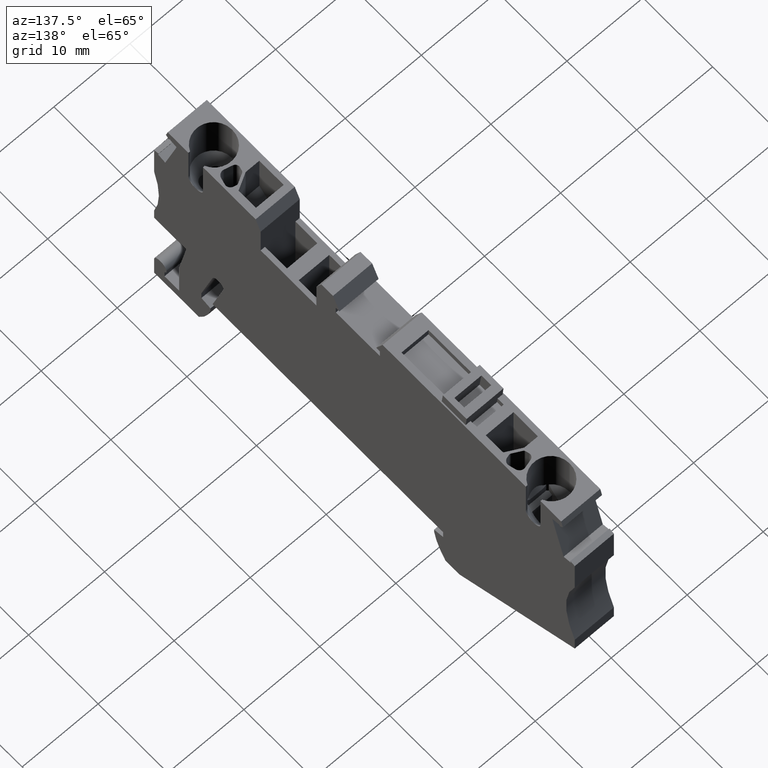
[diagram: clean part render]
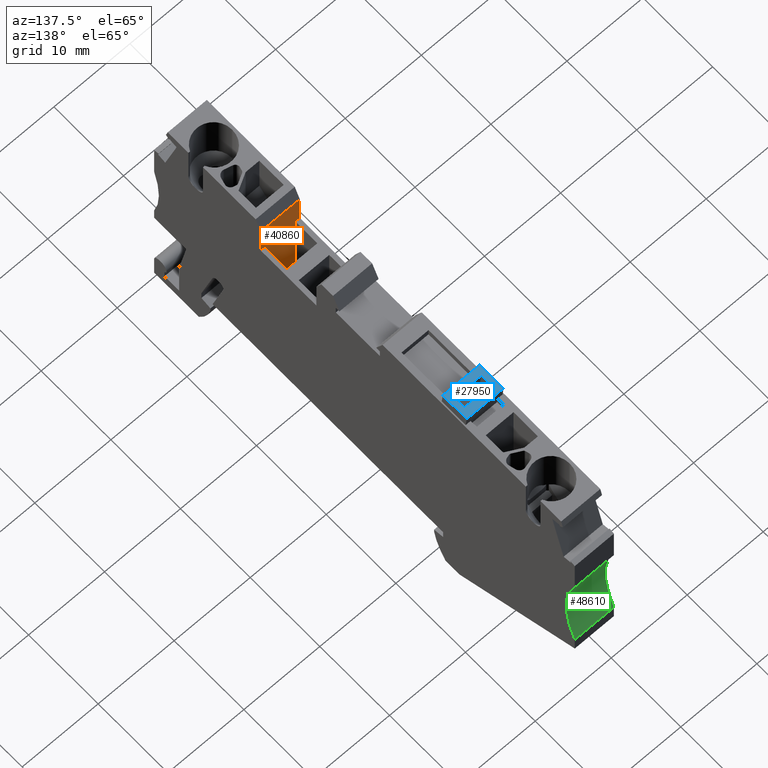
[diagram: same view with three faces highlighted in distinct colors, each labeled with its STEP entity id]
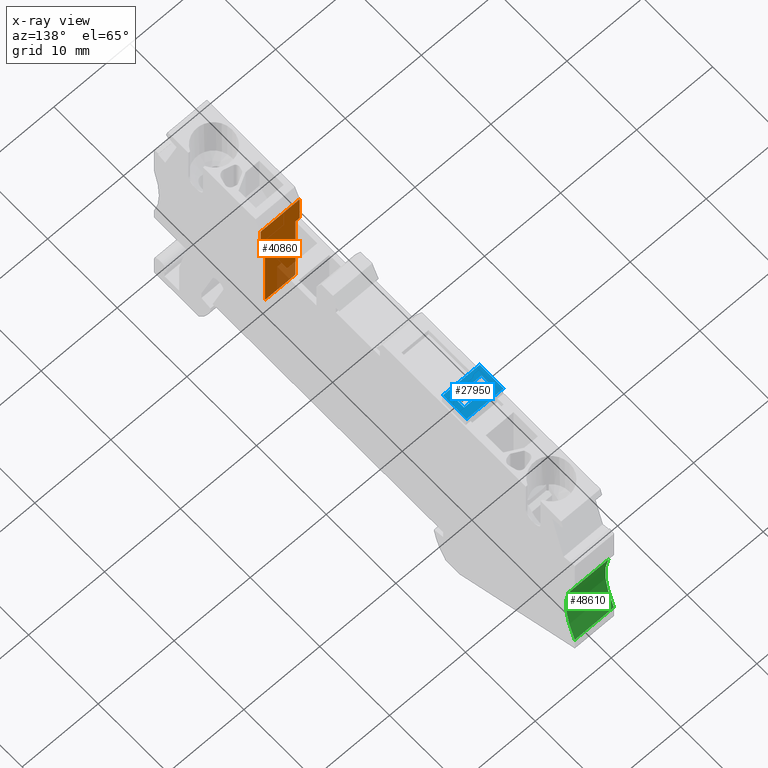
[diagram: x-ray of the same camera — body ghosted, the three highlighted faces saturated]
A machine part, auxiliary view with three faces highlighted in distinct colors.
The next image is the same camera in x-ray (body ghosted, the three faces saturated) — at least one of them is partly hidden behind the body in this view.
Their STEP definitions:

[orange] entity #40860 — the highlighted planar face has unit normal (-0, -1, -0).
#19890=CARTESIAN_POINT('',(-7.06783277832441,-10.850000000003,
53.6700000000099));
#19900=VERTEX_POINT('',#19890);
#19930=CARTESIAN_POINT('',(-7.06783277832433,-41.5717607425285,
53.6699999999942));
#19940=DIRECTION('',(-2.76167977375508E-15,1.,0.));
#19950=VECTOR('',#19940,1.);
#19960=LINE('',#19930,#19950);
#19970=CARTESIAN_POINT('',(-7.06783277832441,-15.1500000000016,
53.6700000000075));
#19980=VERTEX_POINT('',#19970);
#19990=EDGE_CURVE('',#19980,#19900,#19960,.T.);
#38420=CARTESIAN_POINT('',(-7.0678327783244,-15.1500000000016,49.095));
#38430=VERTEX_POINT('',#38420);
#38580=CARTESIAN_POINT('',(-7.06783277832441,-27.35,49.095));
#38590=VERTEX_POINT('',#38580);
#38620=CARTESIAN_POINT('',(-7.06783277832441,-41.5717607425285,49.095));
#38630=DIRECTION('',(0.,-1.,0.));
#38640=VECTOR('',#38630,1.);
#38650=LINE('',#38620,#38640);
#38660=EDGE_CURVE('',#38430,#38590,#38650,.T.);
#40370=CARTESIAN_POINT('',(-7.06783277832441,-15.1500000000016,49.095));
#40380=DIRECTION('',(-1.,-0.,-1.11022302462515E-16));
#40390=DIRECTION('',(1.11022302462515E-16,0.,-1.));
#40400=AXIS2_PLACEMENT_3D('',#40370,#40380,#40390);
#40410=PLANE('',#40400);
#40420=CARTESIAN_POINT('',(-7.06783277832442,-15.1500000000016,53.67));
#40430=DIRECTION('',(0.,0.,-1.));
#40440=VECTOR('',#40430,1.);
#40450=LINE('',#40420,#40440);
#40460=CARTESIAN_POINT('',(-7.06783277832441,-15.1500000000016,53.095));
#40470=VERTEX_POINT('',#40460);
#40480=EDGE_CURVE('',#19980,#40470,#40450,.T.);
#40490=ORIENTED_EDGE('',*,*,#40480,.T.);
#40500=ORIENTED_EDGE('',*,*,#19990,.F.);
#40510=CARTESIAN_POINT('',(-7.06783277832442,-10.8500000000034,53.67));
#40520=DIRECTION('',(0.,0.,1.));
#40530=VECTOR('',#40520,1.);
#40540=LINE('',#40510,#40530);
#40550=CARTESIAN_POINT('',(-7.06783277832441,-10.8500000000033,
48.5199999999973));
#40560=VERTEX_POINT('',#40550);
#40570=EDGE_CURVE('',#40560,#19900,#40540,.T.);
#40580=ORIENTED_EDGE('',*,*,#40570,.T.);
#40590=CARTESIAN_POINT('',(-7.06783277832433,-41.5717607425285,
48.5199999999973));
#40600=DIRECTION('',(2.76167977375508E-15,-1.,0.));
#40610=VECTOR('',#40600,1.);
#40620=LINE('',#40590,#40610);
#40630=CARTESIAN_POINT('',(-7.0678327783244,-15.1500000000016,
48.5199999999973));
#40640=VERTEX_POINT('',#40630);
#40650=EDGE_CURVE('',#40560,#40640,#40620,.T.);
#40660=ORIENTED_EDGE('',*,*,#40650,.F.);
#40670=EDGE_CURVE('',#38430,#40640,#40450,.T.);
#40680=ORIENTED_EDGE('',*,*,#40670,.T.);
#40690=ORIENTED_EDGE('',*,*,#38660,.F.);
#40700=CARTESIAN_POINT('',(-7.06783277832441,-27.3499999999999,53.67));
#40710=DIRECTION('',(1.11022302462515E-16,-4.62223186652937E-33,-1.));
#40720=VECTOR('',#40710,1.);
#40730=LINE('',#40700,#40720);
#40740=CARTESIAN_POINT('',(-7.06783277832441,-27.35,53.095));
#40750=VERTEX_POINT('',#40740);
#40760=EDGE_CURVE('',#40750,#38590,#40730,.T.);
#40770=ORIENTED_EDGE('',*,*,#40760,.T.);
#40780=CARTESIAN_POINT('',(-7.06783277832441,-41.5717607425285,53.095));
#40790=DIRECTION('',(0.,-1.,0.));
#40800=VECTOR('',#40790,1.);
#40810=LINE('',#40780,#40800);
#40820=EDGE_CURVE('',#40470,#40750,#40810,.T.);
#40830=ORIENTED_EDGE('',*,*,#40820,.T.);
#40840=EDGE_LOOP('',(#40830,#40770,#40690,#40680,#40660,#40580,#40500,
#40490));
#40850=FACE_OUTER_BOUND('',#40840,.T.);
#40860=ADVANCED_FACE('',(#40850),#40410,.F.);

[blue] entity #27950 — the highlighted planar face has unit normal (-0, -0, 1).
#2160=CARTESIAN_POINT('',(22.3444107016603,-7.55000000000213,
53.5200000001338));
#2170=VERTEX_POINT('',#2160);
#2320=CARTESIAN_POINT('',(18.9233073521703,-7.55000000000213,
53.5200000001338));
#2330=VERTEX_POINT('',#2320);
#2360=CARTESIAN_POINT('',(-30.4994006644853,-7.55000000000213,
53.5200000001338));
#2370=DIRECTION('',(-1.,0.,0.));
#2380=VECTOR('',#2370,1.);
#2390=LINE('',#2360,#2380);
#2400=EDGE_CURVE('',#2170,#2330,#2390,.T.);
#5700=CARTESIAN_POINT('',(18.9233073521703,-7.55000000000214,
48.6700000001338));
#5710=VERTEX_POINT('',#5700);
#5740=CARTESIAN_POINT('',(18.9233073521703,-7.55000000000213,
53.6700000001002));
#5750=DIRECTION('',(0.,0.,1.));
#5760=VECTOR('',#5750,1.);
#5770=LINE('',#5740,#5760);
#5780=EDGE_CURVE('',#5710,#2330,#5770,.T.);
#5980=CARTESIAN_POINT('',(21.2873305705088,-7.55000000000213,
52.7950000001338));
#5990=DIRECTION('',(0.,0.,1.));
#6000=VECTOR('',#5990,1.);
#6010=LINE('',#5980,#6000);
#6020=CARTESIAN_POINT('',(21.2873305705088,-7.55000000000214,
49.3200000001059));
#6030=VERTEX_POINT('',#6020);
#6040=CARTESIAN_POINT('',(21.2873305705088,-7.55000000000213,
52.8700000001059));
#6050=VERTEX_POINT('',#6040);
#6060=EDGE_CURVE('',#6030,#6050,#6010,.T.);
#6450=CARTESIAN_POINT('',(-30.4994006644853,-7.55000000000213,
48.6700000001338));
#6460=DIRECTION('',(-1.,0.,0.));
#6470=VECTOR('',#6460,1.);
#6480=LINE('',#6450,#6470);
#6490=CARTESIAN_POINT('',(22.3444107016606,-7.55000000000213,
48.6700000001338));
#6500=VERTEX_POINT('',#6490);
#6510=EDGE_CURVE('',#6500,#5710,#6480,.T.);
#7610=CARTESIAN_POINT('',(19.8785402177556,-7.55000000000212,
52.7950000001338));
#7620=DIRECTION('',(0.,0.,1.));
#7630=VECTOR('',#7620,1.);
#7640=LINE('',#7610,#7630);
#7650=CARTESIAN_POINT('',(19.8785402177557,-7.55000000000213,
49.3200000001059));
#7660=VERTEX_POINT('',#7650);
#7670=CARTESIAN_POINT('',(19.8785402177555,-7.55000000000213,
52.8700000001059));
#7680=VERTEX_POINT('',#7670);
#7690=EDGE_CURVE('',#7660,#7680,#7640,.T.);
#18470=CARTESIAN_POINT('',(-30.4994006644851,-7.55000000000213,
52.8700000001059));
#18480=DIRECTION('',(1.,0.,0.));
#18490=VECTOR('',#18480,1.);
#18500=LINE('',#18470,#18490);
#18510=EDGE_CURVE('',#7680,#6050,#18500,.T.);
#27680=CARTESIAN_POINT('',(24.1811696216735,-7.55000000000213,
50.2890504521561));
#27690=DIRECTION('',(0.,1.,0.));
#27700=DIRECTION('',(0.,0.,1.));
#27710=AXIS2_PLACEMENT_3D('',#27680,#27690,#27700);
#27720=PLANE('',#27710);
#27730=CARTESIAN_POINT('',(-30.4994006644851,-7.55000000000213,
49.3200000001059));
#27740=DIRECTION('',(-1.,0.,0.));
#27750=VECTOR('',#27740,1.);
#27760=LINE('',#27730,#27750);
#27770=EDGE_CURVE('',#6030,#7660,#27760,.T.);
#27780=ORIENTED_EDGE('',*,*,#27770,.F.);
#27790=ORIENTED_EDGE('',*,*,#7690,.F.);
#27800=ORIENTED_EDGE('',*,*,#18510,.F.);
#27810=ORIENTED_EDGE('',*,*,#6060,.T.);
#27820=EDGE_LOOP('',(#27810,#27800,#27790,#27780));
#27830=FACE_BOUND('',#27820,.T.);
#27840=ORIENTED_EDGE('',*,*,#2400,.F.);
#27850=ORIENTED_EDGE('',*,*,#5780,.T.);
#27860=ORIENTED_EDGE('',*,*,#6510,.T.);
#27870=CARTESIAN_POINT('',(22.3444107016603,-7.55000000000213,53.67));
#27880=DIRECTION('',(7.02973478089899E-14,6.31088724176809E-30,-1.));
#27890=VECTOR('',#27880,1.);
#27900=LINE('',#27870,#27890);
#27910=EDGE_CURVE('',#2170,#6500,#27900,.T.);
#27920=ORIENTED_EDGE('',*,*,#27910,.T.);
#27930=EDGE_LOOP('',(#27920,#27860,#27850,#27840));
#27940=FACE_OUTER_BOUND('',#27930,.T.);
#27950=ADVANCED_FACE('',(#27830,#27940),#27720,.T.);

[green] entity #48610 — the highlighted cylindrical surface (partial cylindrical patch) has radius 15 mm, axis along (1, 0, 0).
#15130=CARTESIAN_POINT('',(38.0321672216756,-33.2000000000027,
53.6700000000076));
#15140=VERTEX_POINT('',#15130);
#15170=CARTESIAN_POINT('',(38.0321672216756,-33.2000000000027,
48.0049975999936));
#15180=DIRECTION('',(0.,0.,1.));
#15190=VECTOR('',#15180,1.);
#15200=LINE('',#15170,#15190);
#15210=CARTESIAN_POINT('',(38.0321672216756,-33.2000000000027,
48.5199999999973));
#15220=VERTEX_POINT('',#15210);
#15230=EDGE_CURVE('',#15220,#15140,#15200,.T.);
#21970=CARTESIAN_POINT('',(38.0321672216757,-21.2000000000026,
53.6700000000076));
#21980=VERTEX_POINT('',#21970);
#22010=CARTESIAN_POINT('',(51.7798943065431,-27.2000000000027,
53.6700000000076));
#22020=DIRECTION('',(0.,0.,1.));
#22030=DIRECTION('',(1.,0.,0.));
#22040=AXIS2_PLACEMENT_3D('',#22010,#22020,#22030);
#22050=CIRCLE('',#22040,15.);
#22060=EDGE_CURVE('',#21980,#15140,#22050,.T.);
#48370=CARTESIAN_POINT('',(51.7798943065431,-27.2000000000027,
48.0049975999936));
#48380=DIRECTION('',(0.,0.,1.));
#48390=DIRECTION('',(1.,0.,0.));
#48400=AXIS2_PLACEMENT_3D('',#48370,#48380,#48390);
#48410=CYLINDRICAL_SURFACE('',#48400,15.);
#48420=CARTESIAN_POINT('',(51.7798943065431,-27.2000000000027,
48.5199999999973));
#48430=DIRECTION('',(0.,0.,1.));
#48440=DIRECTION('',(1.,0.,0.));
#48450=AXIS2_PLACEMENT_3D('',#48420,#48430,#48440);
#48460=CIRCLE('',#48450,15.);
#48470=CARTESIAN_POINT('',(38.0321672216757,-21.2000000000026,
48.5199999999973));
#48480=VERTEX_POINT('',#48470);
#48490=EDGE_CURVE('',#48480,#15220,#48460,.T.);
#48500=ORIENTED_EDGE('',*,*,#48490,.F.);
#48510=ORIENTED_EDGE('',*,*,#15230,.F.);
#48520=ORIENTED_EDGE('',*,*,#22060,.T.);
#48530=CARTESIAN_POINT('',(38.0321672216757,-21.2000000000026,
48.0049975999936));
#48540=DIRECTION('',(0.,0.,-1.));
#48550=VECTOR('',#48540,1.);
#48560=LINE('',#48530,#48550);
#48570=EDGE_CURVE('',#21980,#48480,#48560,.T.);
#48580=ORIENTED_EDGE('',*,*,#48570,.F.);
#48590=EDGE_LOOP('',(#48580,#48520,#48510,#48500));
#48600=FACE_OUTER_BOUND('',#48590,.T.);
#48610=ADVANCED_FACE('',(#48600),#48410,.F.);